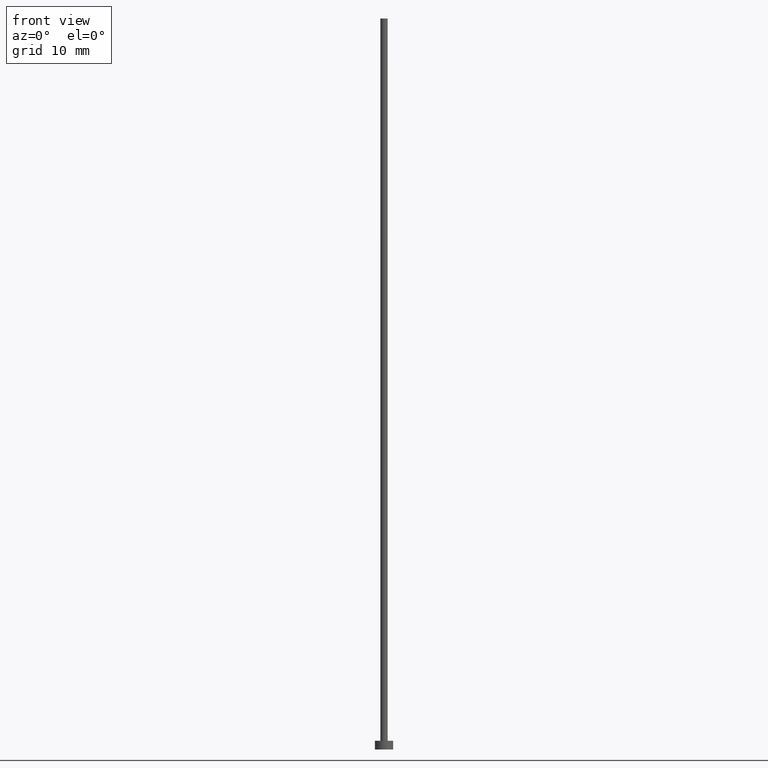
[diagram: clean part render]
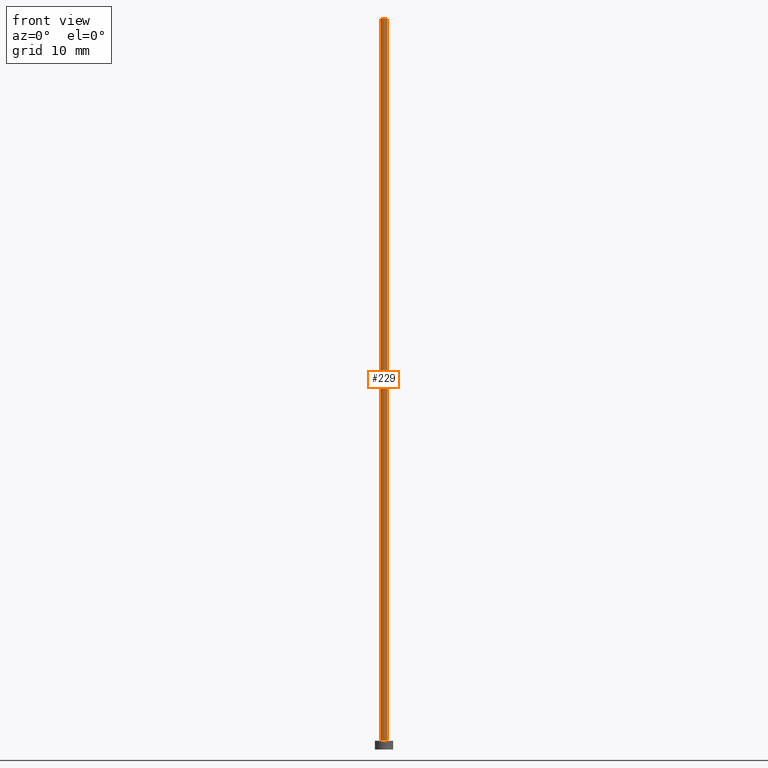
[diagram: same view with one face highlighted and labeled with its STEP entity id]
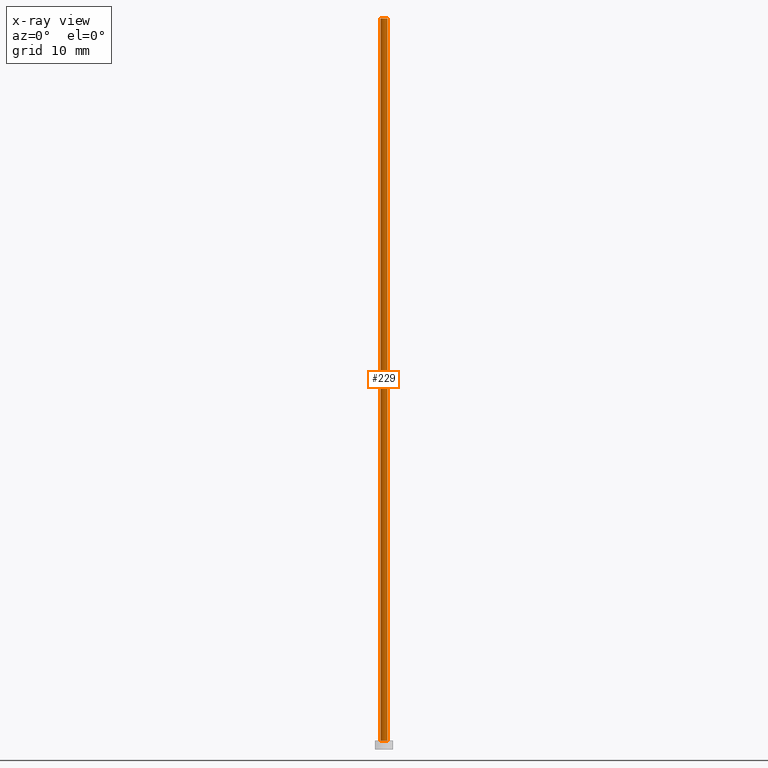
[diagram: x-ray of the same camera — body ghosted, the highlighted face saturated]
A machine part, front view. The second image highlights one B-rep face of the part: STEP entity #229.
The next image is the same camera in x-ray: the body ghosted, the highlighted face saturated — about 0% of this face is hidden behind the body in this view.
In plain terms, the highlighted cylindrical surface (edge-blend (fillet) strip) has radius 0.5 mm, axis along (-0, -0, -1).
Its self-contained STEP definition (entity closure, byte-faithful):
#10 = AXIS2_PLACEMENT_3D ( 'NONE', #91, #68, #93 ) ;
#12 = AXIS2_PLACEMENT_3D ( 'NONE', #165, #29, #217 ) ;
#13 = CARTESIAN_POINT ( 'NONE',  ( -0.5000000000000000000, 0.000000000000000000, 1.199999999999999956 ) ) ;
#29 = DIRECTION ( 'NONE',  ( 0.000000000000000000, 0.000000000000000000, 1.000000000000000000 ) ) ;
#32 = CIRCLE ( 'NONE', #10, 0.5000000000000000000 ) ;
#34 = VERTEX_POINT ( 'NONE', #162 ) ;
#42 = CARTESIAN_POINT ( 'NONE',  ( -0.5000000000000000000, 0.000000000000000000, 100.0000000000000000 ) ) ;
#44 = ORIENTED_EDGE ( 'NONE', *, *, #219, .F. ) ;
#46 = CIRCLE ( 'NONE', #12, 0.5000000000000000000 ) ;
#49 = FACE_OUTER_BOUND ( 'NONE', #120, .T. ) ;
#66 = CARTESIAN_POINT ( 'NONE',  ( 0.5000000000000000000, 6.123233995736766036E-17, 1.199999999999999956 ) ) ;
#68 = DIRECTION ( 'NONE',  ( 0.000000000000000000, 0.000000000000000000, 1.000000000000000000 ) ) ;
#75 = CARTESIAN_POINT ( 'NONE',  ( 0.5000000000000000000, 6.123233995736766036E-17, 100.0000000000000000 ) ) ;
#91 = CARTESIAN_POINT ( 'NONE',  ( 0.000000000000000000, 0.000000000000000000, 1.199999999999999956 ) ) ;
#93 = DIRECTION ( 'NONE',  ( 1.000000000000000000, 0.000000000000000000, 0.000000000000000000 ) ) ;
#97 = CARTESIAN_POINT ( 'NONE',  ( -0.5000000000000000000, 0.000000000000000000, 100.0000000000000000 ) ) ;
#106 = EDGE_CURVE ( 'NONE', #251, #137, #209, .T. ) ;
#110 = DIRECTION ( 'NONE',  ( -0.000000000000000000, -0.000000000000000000, -1.000000000000000000 ) ) ;
#114 = VECTOR ( 'NONE', #119, 1000.000000000000000 ) ;
#119 = DIRECTION ( 'NONE',  ( -0.000000000000000000, -0.000000000000000000, -1.000000000000000000 ) ) ;
#120 = EDGE_LOOP ( 'NONE', ( #193, #44, #253, #246 ) ) ;
#124 = CYLINDRICAL_SURFACE ( 'NONE', #135, 0.5000000000000000000 ) ;
#127 = LINE ( 'NONE', #75, #149 ) ;
#135 = AXIS2_PLACEMENT_3D ( 'NONE', #195, #110, #180 ) ;
#137 = VERTEX_POINT ( 'NONE', #13 ) ;
#139 = EDGE_CURVE ( 'NONE', #137, #202, #32, .T. ) ;
#149 = VECTOR ( 'NONE', #167, 1000.000000000000000 ) ;
#162 = CARTESIAN_POINT ( 'NONE',  ( 0.5000000000000000000, 6.123233995736766036E-17, 100.0000000000000000 ) ) ;
#165 = CARTESIAN_POINT ( 'NONE',  ( 0.000000000000000000, 0.000000000000000000, 100.0000000000000000 ) ) ;
#167 = DIRECTION ( 'NONE',  ( -0.000000000000000000, -0.000000000000000000, -1.000000000000000000 ) ) ;
#180 = DIRECTION ( 'NONE',  ( -1.000000000000000000, 0.000000000000000000, 0.000000000000000000 ) ) ;
#193 = ORIENTED_EDGE ( 'NONE', *, *, #197, .F. ) ;
#195 = CARTESIAN_POINT ( 'NONE',  ( 0.000000000000000000, 0.000000000000000000, 100.0000000000000000 ) ) ;
#197 = EDGE_CURVE ( 'NONE', #34, #202, #127, .T. ) ;
#202 = VERTEX_POINT ( 'NONE', #66 ) ;
#209 = LINE ( 'NONE', #42, #114 ) ;
#217 = DIRECTION ( 'NONE',  ( 1.000000000000000000, 0.000000000000000000, 0.000000000000000000 ) ) ;
#219 = EDGE_CURVE ( 'NONE', #251, #34, #46, .T. ) ;
#229 = ADVANCED_FACE ( 'NONE', ( #49 ), #124, .T. ) ;
#246 = ORIENTED_EDGE ( 'NONE', *, *, #139, .T. ) ;
#251 = VERTEX_POINT ( 'NONE', #97 ) ;
#253 = ORIENTED_EDGE ( 'NONE', *, *, #106, .T. ) ;